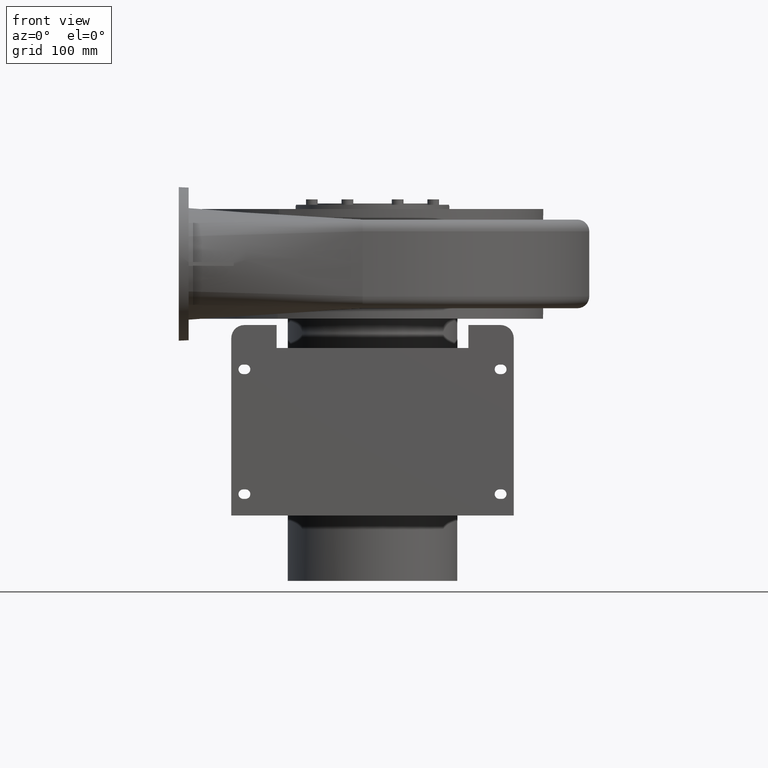
[diagram: clean part render]
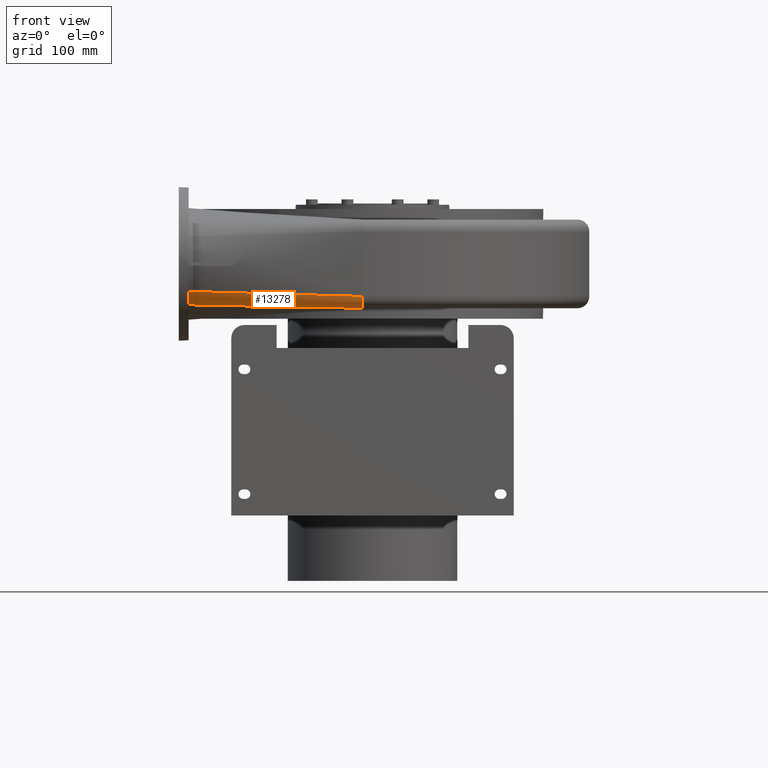
[diagram: same view with one face highlighted and labeled with its STEP entity id]
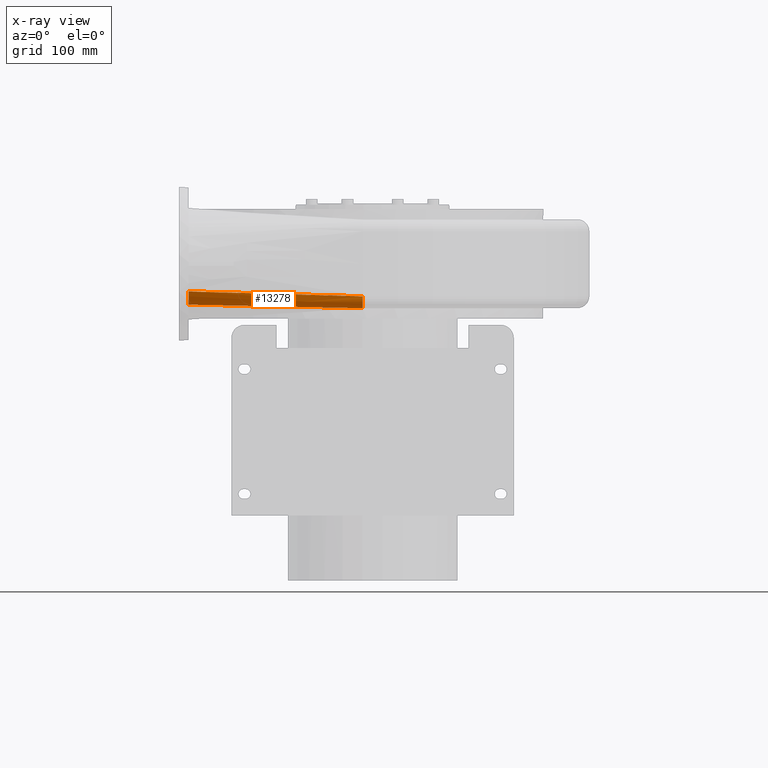
[diagram: x-ray of the same camera — body ghosted, the highlighted face saturated]
A machine part, front view. The second image highlights one B-rep face of the part: STEP entity #13278.
The next image is the same camera in x-ray: the body ghosted, the highlighted face saturated — about 0% of this face is hidden behind the body in this view.
In plain terms, the highlighted face is a freeform B-spline surface patch.
Its self-contained STEP definition (entity closure, byte-faithful):
#2737=B_SPLINE_CURVE_WITH_KNOTS('',3,(#22994,#22995,#22996,#22997),
 .UNSPECIFIED.,.F.,.F.,(4,4),(0.,1.),.UNSPECIFIED.);
#2738=B_SPLINE_CURVE_WITH_KNOTS('',3,(#23000,#23001,#23002,#23003),
 .UNSPECIFIED.,.F.,.F.,(4,4),(0.,1.),.UNSPECIFIED.);
#2920=B_SPLINE_SURFACE_WITH_KNOTS('',3,3,((#22965,#22966,#22967,#22968),
(#22969,#22970,#22971,#22972),(#22973,#22974,#22975,#22976),(#22977,#22978,
#22979,#22980),(#22981,#22982,#22983,#22984),(#22985,#22986,#22987,#22988),
(#22989,#22990,#22991,#22992)),.UNSPECIFIED.,.F.,.F.,.F.,(4,1,1,1,4),(4,
4),(0.,0.285714285714286,0.571428571428571,0.857142857142857,1.),(0.,1.),
 .UNSPECIFIED.);
#3820=FACE_OUTER_BOUND('',#4642,.T.);
#4642=EDGE_LOOP('',(#11287,#11288,#11289,#11290));
#4918=CIRCLE('',#13995,18.);
#4925=CIRCLE('',#14004,85.);
#6104=VERTEX_POINT('',#22871);
#6108=VERTEX_POINT('',#22896);
#6115=VERTEX_POINT('',#22993);
#6116=VERTEX_POINT('',#22998);
#7858=EDGE_CURVE('',#6104,#6108,#4918,.T.);
#7869=EDGE_CURVE('',#6104,#6115,#2737,.T.);
#7870=EDGE_CURVE('',#6116,#6115,#4925,.T.);
#7871=EDGE_CURVE('',#6108,#6116,#2738,.T.);
#11287=ORIENTED_EDGE('',*,*,#7858,.F.);
#11288=ORIENTED_EDGE('',*,*,#7869,.T.);
#11289=ORIENTED_EDGE('',*,*,#7870,.F.);
#11290=ORIENTED_EDGE('',*,*,#7871,.F.);
#13278=ADVANCED_FACE('',(#3820),#2920,.T.);
#13995=AXIS2_PLACEMENT_3D('',#22897,#16549,#16550);
#14004=AXIS2_PLACEMENT_3D('',#22999,#16567,#16568);
#16549=DIRECTION('center_axis',(1.,5.51295955848887E-15,-2.21867473071668E-15));
#16550=DIRECTION('ref_axis',(5.51295955848887E-15,-1.,4.67343487721591E-16));
#16567=DIRECTION('center_axis',(-1.,-5.51295955848887E-15,2.21867473071668E-15));
#16568=DIRECTION('ref_axis',(-2.21867473071667E-15,-4.67343487721603E-16,
-1.));
#22871=CARTESIAN_POINT('',(-14.9999999999988,39.9999999999984,333.499999999998));
#22896=CARTESIAN_POINT('',(-14.9999999999989,57.9999999999984,315.499999999998));
#22897=CARTESIAN_POINT('Origin',(-14.9999999999989,57.9999999999984,333.499999999998));
#22965=CARTESIAN_POINT('Ctrl Pts',(-14.9999999999989,57.9999999999984,315.499999999998));
#22966=CARTESIAN_POINT('Ctrl Pts',(-103.333333333332,61.0108714452068,317.277542511569));
#22967=CARTESIAN_POINT('Ctrl Pts',(-191.666666666666,64.0217428904152,319.05508502314));
#22968=CARTESIAN_POINT('Ctrl Pts',(-279.999999999999,67.0326143356236,320.832627534711));
#22969=CARTESIAN_POINT('Ctrl Pts',(-14.9999999999989,55.3072062969214,315.499999999998));
#22970=CARTESIAN_POINT('Ctrl Pts',(-103.333333333332,58.6146002603009,317.838671078501));
#22971=CARTESIAN_POINT('Ctrl Pts',(-191.666666666666,61.922559030919,320.174831182789));
#22972=CARTESIAN_POINT('Ctrl Pts',(-279.999999999999,65.2299529942984,322.513502261292));
#22973=CARTESIAN_POINT('Ctrl Pts',(-14.9999999999989,49.9236611878378,316.729949239232));
#22974=CARTESIAN_POINT('Ctrl Pts',(-103.333333333332,53.8729786837383,319.83106597075));
#22975=CARTESIAN_POINT('Ctrl Pts',(-191.666666666665,57.8216332473256,322.931052786362));
#22976=CARTESIAN_POINT('Ctrl Pts',(-279.999999999999,61.7709507432262,326.03216951788));
#22977=CARTESIAN_POINT('Ctrl Pts',(-14.9999999999988,43.4448772949749,321.893936954895));
#22978=CARTESIAN_POINT('Ctrl Pts',(-103.333333333332,47.9831404030427,325.176578334429));
#22979=CARTESIAN_POINT('Ctrl Pts',(-191.666666666666,52.5223378301623,328.458337413947));
#22980=CARTESIAN_POINT('Ctrl Pts',(-279.999999999999,57.0606009382301,331.74097879348));
#22981=CARTESIAN_POINT('Ctrl Pts',(-14.9999999999988,40.4510421280487,328.113703823083));
#22982=CARTESIAN_POINT('Ctrl Pts',(-103.333333333332,44.8221906011318,331.016321563676));
#22983=CARTESIAN_POINT('Ctrl Pts',(-191.666666666665,49.1923460890888,333.918757535009));
#22984=CARTESIAN_POINT('Ctrl Pts',(-279.999999999999,53.5634945621719,336.821375275601));
#22985=CARTESIAN_POINT('Ctrl Pts',(-14.9999999999988,39.9999999999984,332.153603148459));
#22986=CARTESIAN_POINT('Ctrl Pts',(-103.333333333332,43.889362999905,334.768230544684));
#22987=CARTESIAN_POINT('Ctrl Pts',(-191.666666666666,47.7804276791587,337.383057167419));
#22988=CARTESIAN_POINT('Ctrl Pts',(-279.999999999999,51.6697906790652,339.997684563643));
#22989=CARTESIAN_POINT('Ctrl Pts',(-14.9999999999988,39.9999999999984,333.499999999998));
#22990=CARTESIAN_POINT('Ctrl Pts',(-103.333333333332,43.6872886143935,336.023224352879));
#22991=CARTESIAN_POINT('Ctrl Pts',(-191.666666666665,47.3745772287885,338.546448705761));
#22992=CARTESIAN_POINT('Ctrl Pts',(-279.999999999999,51.0618658431836,341.069673058642));
#22993=CARTESIAN_POINT('',(-279.999999999999,51.0618658431836,341.069673058642));
#22994=CARTESIAN_POINT('Ctrl Pts',(-14.9999999999988,39.9999999999984,333.499999999998));
#22995=CARTESIAN_POINT('Ctrl Pts',(-103.333333333332,43.6872886143935,336.023224352879));
#22996=CARTESIAN_POINT('Ctrl Pts',(-191.666666666665,47.3745772287885,338.546448705761));
#22997=CARTESIAN_POINT('Ctrl Pts',(-279.999999999999,51.0618658431836,341.069673058642));
#22998=CARTESIAN_POINT('',(-279.999999999999,67.0326143356236,320.832627534711));
#22999=CARTESIAN_POINT('Origin',(-279.999999999999,124.999999999997,382.999999999998));
#23000=CARTESIAN_POINT('Ctrl Pts',(-14.9999999999989,57.9999999999984,315.499999999998));
#23001=CARTESIAN_POINT('Ctrl Pts',(-103.333333333332,61.0108714452068,317.277542511569));
#23002=CARTESIAN_POINT('Ctrl Pts',(-191.666666666666,64.0217428904152,319.05508502314));
#23003=CARTESIAN_POINT('Ctrl Pts',(-279.999999999999,67.0326143356236,320.832627534711));